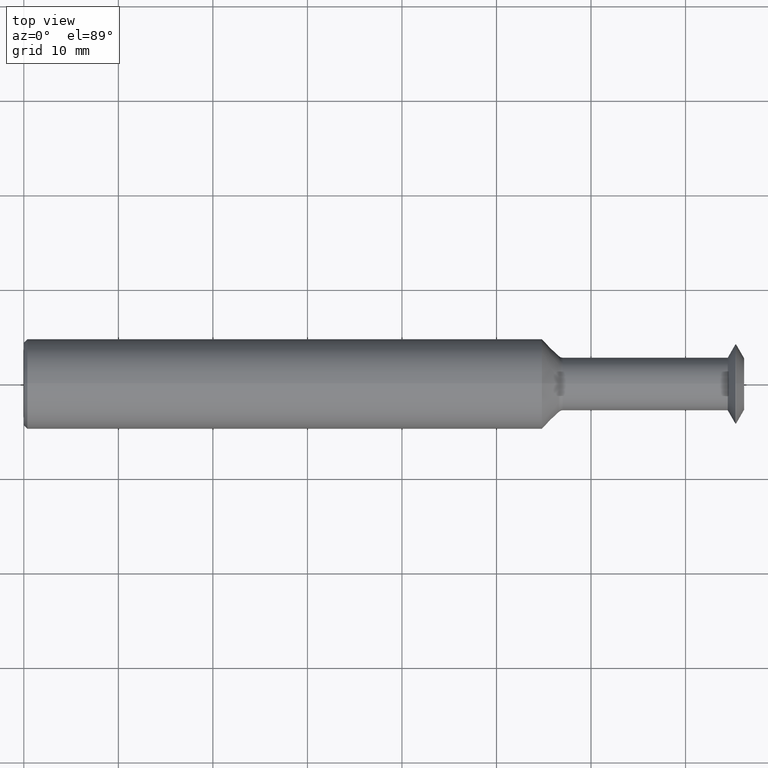
[diagram: clean part render]
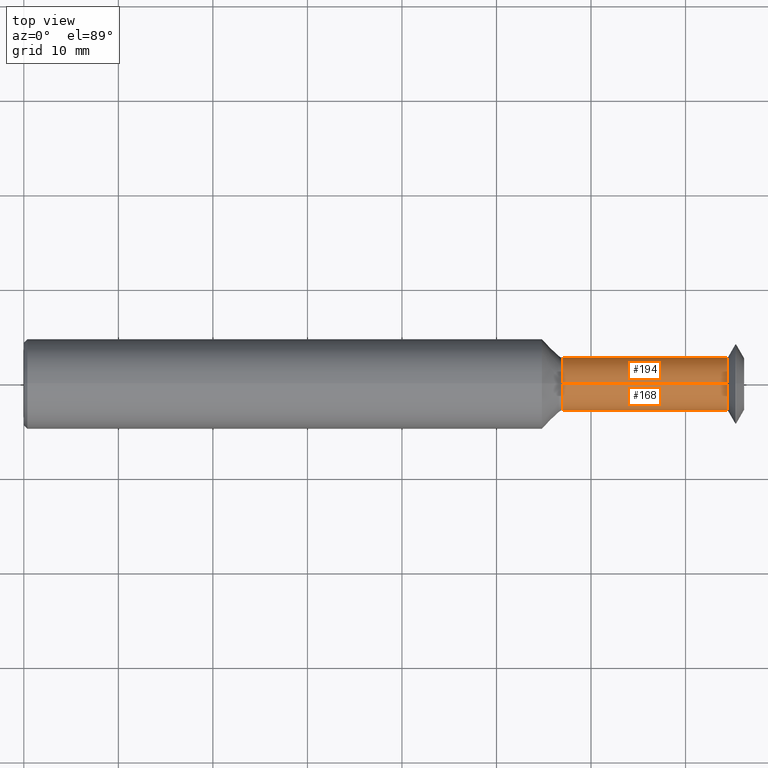
[diagram: same view with one multi-face feature highlighted, each face labeled with its STEP entity id]
A machine part, top view. The highlighted faces form ONE feature: a constant-radius fillet chain: 2 tangent blend faces with common blend radius 2.794 mm. The faces share edges in the B-rep.
Their STEP definitions:
[1] entity #194 (Cylinder):
#12 = LINE ( 'NONE', #387, #16 ) ;
#16 = VECTOR ( 'NONE', #339, 39.37007874015748143 ) ;
#33 = CARTESIAN_POINT ( 'NONE',  ( 2.931505539846447128, 0.0000000000000000000, -0.1099999999999994732 ) ) ;
#42 = DIRECTION ( 'NONE',  ( 0.0000000000000000000, 0.0000000000000000000, 1.000000000000000000 ) ) ;
#95 = ORIENTED_EDGE ( 'NONE', *, *, #403, .T. ) ;
#99 = LINE ( 'NONE', #189, #170 ) ;
#120 = EDGE_CURVE ( 'NONE', #224, #501, #464, .T. ) ;
#122 = DIRECTION ( 'NONE',  ( -1.000000000000000000, -0.0000000000000000000, -0.0000000000000000000 ) ) ;
#126 = DIRECTION ( 'NONE',  ( -1.000000000000000000, -0.0000000000000000000, -0.0000000000000000000 ) ) ;
#148 = DIRECTION ( 'NONE',  ( 0.0000000000000000000, 0.0000000000000000000, 1.000000000000000000 ) ) ;
#164 = AXIS2_PLACEMENT_3D ( 'NONE', #441, #229, #42 ) ;
#169 = EDGE_CURVE ( 'NONE', #241, #180, #377, .T. ) ;
#170 = VECTOR ( 'NONE', #193, 39.37007874015748143 ) ;
#180 = VERTEX_POINT ( 'NONE', #294 ) ;
#189 = CARTESIAN_POINT ( 'NONE',  ( 0.0000000000000000000, 1.347111479062082155E-17, -0.1099999999999994732 ) ) ;
#190 = CARTESIAN_POINT ( 'NONE',  ( 0.0000000000000000000, 0.0000000000000000000, 0.0000000000000000000 ) ) ;
#193 = DIRECTION ( 'NONE',  ( -1.000000000000000000, -0.0000000000000000000, -0.0000000000000000000 ) ) ;
#194 = ADVANCED_FACE ( 'NONE', ( #432 ), #478, .T. ) ;
#213 = ORIENTED_EDGE ( 'NONE', *, *, #218, .F. ) ;
#218 = EDGE_CURVE ( 'NONE', #224, #241, #12, .T. ) ;
#224 = VERTEX_POINT ( 'NONE', #454 ) ;
#229 = DIRECTION ( 'NONE',  ( -1.000000000000000000, -0.0000000000000000000, -0.0000000000000000000 ) ) ;
#241 = VERTEX_POINT ( 'NONE', #245 ) ;
#245 = CARTESIAN_POINT ( 'NONE',  ( 2.245247311676199953, 0.0000000000000000000, 0.1099999999999994732 ) ) ;
#273 = ORIENTED_EDGE ( 'NONE', *, *, #169, .F. ) ;
#294 = CARTESIAN_POINT ( 'NONE',  ( 2.245247311676199953, 1.347111479062082155E-17, -0.1099999999999994732 ) ) ;
#309 = AXIS2_PLACEMENT_3D ( 'NONE', #190, #122, #148 ) ;
#339 = DIRECTION ( 'NONE',  ( -1.000000000000000000, -0.0000000000000000000, -0.0000000000000000000 ) ) ;
#350 = AXIS2_PLACEMENT_3D ( 'NONE', #469, #126, #492 ) ;
#377 = CIRCLE ( 'NONE', #350, 0.1099999999999994732 ) ;
#387 = CARTESIAN_POINT ( 'NONE',  ( 0.0000000000000000000, 0.0000000000000000000, 0.1099999999999994732 ) ) ;
#403 = EDGE_CURVE ( 'NONE', #501, #180, #99, .T. ) ;
#432 = FACE_OUTER_BOUND ( 'NONE', #457, .T. ) ;
#441 = CARTESIAN_POINT ( 'NONE',  ( 2.931505539846447128, 0.0000000000000000000, 0.0000000000000000000 ) ) ;
#454 = CARTESIAN_POINT ( 'NONE',  ( 2.931505539846447128, 1.690012582823340910E-17, 0.1099999999999994732 ) ) ;
#457 = EDGE_LOOP ( 'NONE', ( #488, #95, #273, #213 ) ) ;
#464 = CIRCLE ( 'NONE', #164, 0.1099999999999994732 ) ;
#469 = CARTESIAN_POINT ( 'NONE',  ( 2.245247311676199953, 0.0000000000000000000, 0.0000000000000000000 ) ) ;
#478 = CYLINDRICAL_SURFACE ( 'NONE', #309, 0.1099999999999994732 ) ;
#488 = ORIENTED_EDGE ( 'NONE', *, *, #120, .T. ) ;
#492 = DIRECTION ( 'NONE',  ( 0.0000000000000000000, 0.0000000000000000000, 1.000000000000000000 ) ) ;
#501 = VERTEX_POINT ( 'NONE', #33 ) ;
[2] entity #168 (Cylinder):
#12 = LINE ( 'NONE', #387, #16 ) ;
#16 = VECTOR ( 'NONE', #339, 39.37007874015748143 ) ;
#30 = ORIENTED_EDGE ( 'NONE', *, *, #489, .F. ) ;
#33 = CARTESIAN_POINT ( 'NONE',  ( 2.931505539846447128, 0.0000000000000000000, -0.1099999999999994732 ) ) ;
#81 = DIRECTION ( 'NONE',  ( 0.0000000000000000000, 0.0000000000000000000, 1.000000000000000000 ) ) ;
#99 = LINE ( 'NONE', #189, #170 ) ;
#121 = ORIENTED_EDGE ( 'NONE', *, *, #183, .T. ) ;
#146 = DIRECTION ( 'NONE',  ( -1.000000000000000000, -0.0000000000000000000, -0.0000000000000000000 ) ) ;
#162 = CARTESIAN_POINT ( 'NONE',  ( 2.245247311676199953, 0.0000000000000000000, 0.0000000000000000000 ) ) ;
#168 = ADVANCED_FACE ( 'NONE', ( #461 ), #496, .T. ) ;
#170 = VECTOR ( 'NONE', #193, 39.37007874015748143 ) ;
#176 = AXIS2_PLACEMENT_3D ( 'NONE', #162, #322, #178 ) ;
#178 = DIRECTION ( 'NONE',  ( 0.0000000000000000000, 0.0000000000000000000, 1.000000000000000000 ) ) ;
#180 = VERTEX_POINT ( 'NONE', #294 ) ;
#183 = EDGE_CURVE ( 'NONE', #501, #224, #416, .T. ) ;
#189 = CARTESIAN_POINT ( 'NONE',  ( 0.0000000000000000000, 1.347111479062082155E-17, -0.1099999999999994732 ) ) ;
#193 = DIRECTION ( 'NONE',  ( -1.000000000000000000, -0.0000000000000000000, -0.0000000000000000000 ) ) ;
#202 = DIRECTION ( 'NONE',  ( -1.000000000000000000, -0.0000000000000000000, -0.0000000000000000000 ) ) ;
#218 = EDGE_CURVE ( 'NONE', #224, #241, #12, .T. ) ;
#221 = AXIS2_PLACEMENT_3D ( 'NONE', #386, #146, #313 ) ;
#224 = VERTEX_POINT ( 'NONE', #454 ) ;
#241 = VERTEX_POINT ( 'NONE', #245 ) ;
#245 = CARTESIAN_POINT ( 'NONE',  ( 2.245247311676199953, 0.0000000000000000000, 0.1099999999999994732 ) ) ;
#255 = EDGE_LOOP ( 'NONE', ( #344, #121, #355, #30 ) ) ;
#294 = CARTESIAN_POINT ( 'NONE',  ( 2.245247311676199953, 1.347111479062082155E-17, -0.1099999999999994732 ) ) ;
#313 = DIRECTION ( 'NONE',  ( 0.0000000000000000000, 0.0000000000000000000, 1.000000000000000000 ) ) ;
#314 = CIRCLE ( 'NONE', #176, 0.1099999999999994732 ) ;
#322 = DIRECTION ( 'NONE',  ( -1.000000000000000000, -0.0000000000000000000, -0.0000000000000000000 ) ) ;
#339 = DIRECTION ( 'NONE',  ( -1.000000000000000000, -0.0000000000000000000, -0.0000000000000000000 ) ) ;
#344 = ORIENTED_EDGE ( 'NONE', *, *, #403, .F. ) ;
#355 = ORIENTED_EDGE ( 'NONE', *, *, #218, .T. ) ;
#384 = AXIS2_PLACEMENT_3D ( 'NONE', #500, #202, #81 ) ;
#386 = CARTESIAN_POINT ( 'NONE',  ( 2.931505539846447128, 0.0000000000000000000, 0.0000000000000000000 ) ) ;
#387 = CARTESIAN_POINT ( 'NONE',  ( 0.0000000000000000000, 0.0000000000000000000, 0.1099999999999994732 ) ) ;
#403 = EDGE_CURVE ( 'NONE', #501, #180, #99, .T. ) ;
#416 = CIRCLE ( 'NONE', #221, 0.1099999999999994732 ) ;
#454 = CARTESIAN_POINT ( 'NONE',  ( 2.931505539846447128, 1.690012582823340910E-17, 0.1099999999999994732 ) ) ;
#461 = FACE_OUTER_BOUND ( 'NONE', #255, .T. ) ;
#489 = EDGE_CURVE ( 'NONE', #180, #241, #314, .T. ) ;
#496 = CYLINDRICAL_SURFACE ( 'NONE', #384, 0.1099999999999994732 ) ;
#500 = CARTESIAN_POINT ( 'NONE',  ( 0.0000000000000000000, 0.0000000000000000000, 0.0000000000000000000 ) ) ;
#501 = VERTEX_POINT ( 'NONE', #33 ) ;